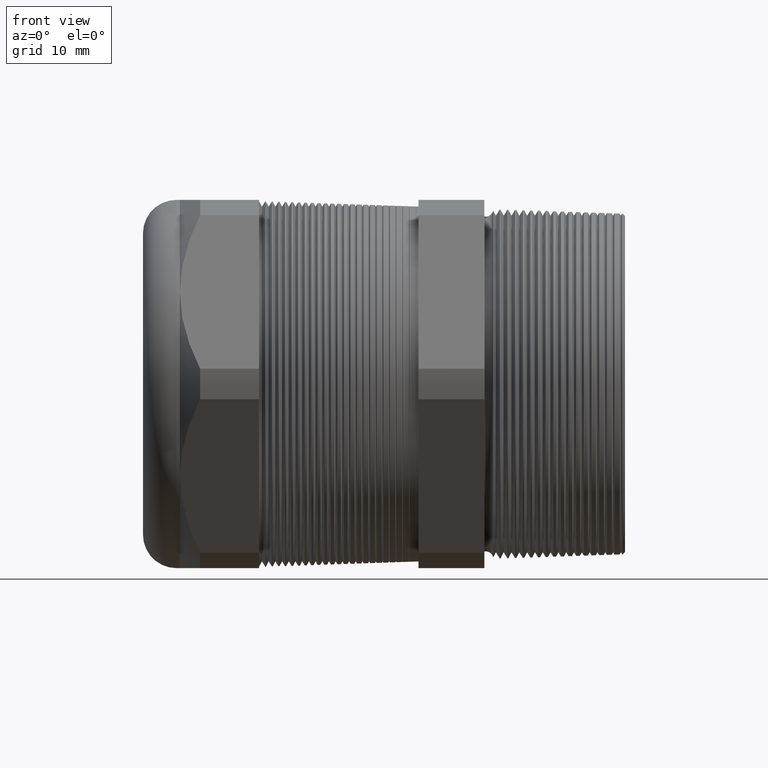
[diagram: clean part render]
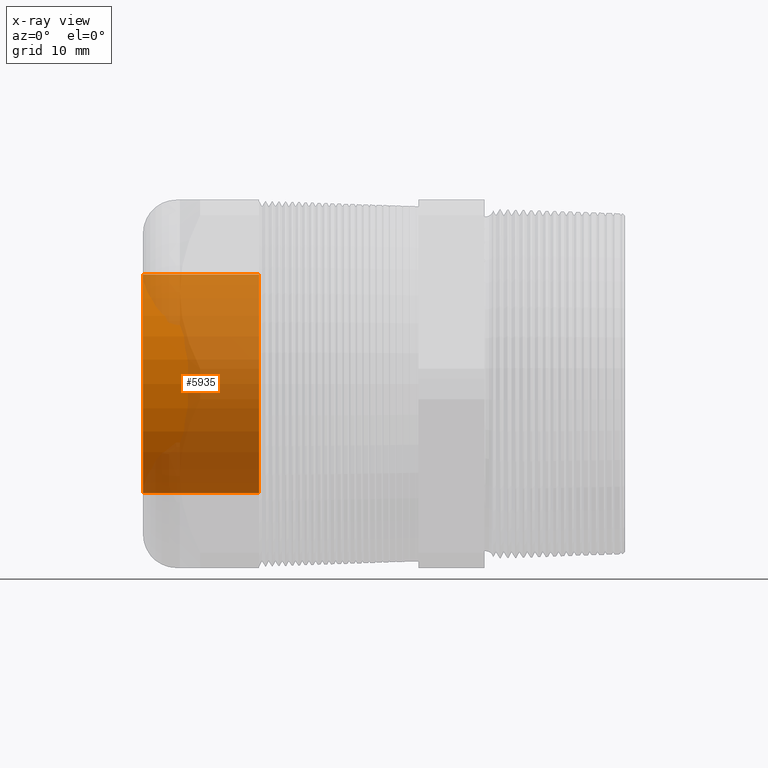
[diagram: x-ray — body ghosted, one internal face saturated and labeled with its STEP entity id]
A machine part, front view, then the same camera in x-ray: the body is ghosted and one INTERNAL B-rep face — a face not visible from any outside direction — is saturated and labeled: STEP entity #5935.
In plain terms, the highlighted cylindrical surface (partial cylindrical patch) has radius 12.446 mm, axis along (1, 0, 0).
Its self-contained STEP definition (entity closure, byte-faithful):
#1705 = CARTESIAN_POINT ( 'NONE',  ( -1.320314960629921600, 0.0000000000000000000, -0.4899999999999999900 ) ) ;
#1706 = CARTESIAN_POINT ( 'NONE',  ( -1.320314960629921600, 6.000769315822029800E-017, 0.4899999999999999900 ) ) ;
#1707 = DIRECTION ( 'NONE',  ( 0.0000000000000000000, 0.0000000000000000000, -1.000000000000000000 ) ) ;
#1708 = DIRECTION ( 'NONE',  ( 1.000000000000000000, 0.0000000000000000000, 0.0000000000000000000 ) ) ;
#1709 = CARTESIAN_POINT ( 'NONE',  ( -1.320314960629921600, 0.0000000000000000000, 0.0000000000000000000 ) ) ;
#1710 = AXIS2_PLACEMENT_3D ( 'NONE', #1709, #1708, #1707 ) ;
#1711 = CIRCLE ( 'NONE', #1710, 0.4899999999999999900 ) ;
#1820 = DIRECTION ( 'NONE',  ( 1.000000000000000000, 0.0000000000000000000, 0.0000000000000000000 ) ) ;
#1821 = VECTOR ( 'NONE', #1820, 39.37007874015748100 ) ;
#1822 = CARTESIAN_POINT ( 'NONE',  ( 0.0000000000000000000, 0.0000000000000000000, -0.4899999999999999900 ) ) ;
#1823 = LINE ( 'NONE', #1822, #1821 ) ;
#1824 = DIRECTION ( 'NONE',  ( 1.000000000000000000, 0.0000000000000000000, 0.0000000000000000000 ) ) ;
#1825 = VECTOR ( 'NONE', #1824, 39.37007874015748100 ) ;
#1826 = CARTESIAN_POINT ( 'NONE',  ( 0.0000000000000000000, 6.000769315822029800E-017, 0.4899999999999999900 ) ) ;
#1827 = LINE ( 'NONE', #1826, #1825 ) ;
#1828 = CARTESIAN_POINT ( 'NONE',  ( -1.840000000000000100, 0.0000000000000000000, -0.4899999999999999900 ) ) ;
#1829 = CARTESIAN_POINT ( 'NONE',  ( -1.840000000000000100, 6.000769315822029800E-017, 0.4899999999999999900 ) ) ;
#1830 = DIRECTION ( 'NONE',  ( 0.0000000000000000000, 0.0000000000000000000, -1.000000000000000000 ) ) ;
#1831 = DIRECTION ( 'NONE',  ( 1.000000000000000000, 0.0000000000000000000, 0.0000000000000000000 ) ) ;
#1832 = AXIS2_PLACEMENT_3D ( 'NONE', #1838, #1831, #1830 ) ;
#1833 = CIRCLE ( 'NONE', #1832, 0.4899999999999999900 ) ;
#1834 = DIRECTION ( 'NONE',  ( 0.0000000000000000000, 0.0000000000000000000, -1.000000000000000000 ) ) ;
#1835 = DIRECTION ( 'NONE',  ( 1.000000000000000000, 0.0000000000000000000, 0.0000000000000000000 ) ) ;
#1836 = CARTESIAN_POINT ( 'NONE',  ( 0.0000000000000000000, 0.0000000000000000000, 0.0000000000000000000 ) ) ;
#1837 = AXIS2_PLACEMENT_3D ( 'NONE', #1836, #1835, #1834 ) ;
#1838 = CARTESIAN_POINT ( 'NONE',  ( -1.840000000000000100, 0.0000000000000000000, 0.0000000000000000000 ) ) ;
#1839 = CYLINDRICAL_SURFACE ( 'NONE', #1837, 0.4899999999999999900 ) ;
#1840 = FACE_OUTER_BOUND ( 'NONE', #5936, .T. ) ;
#5868 = EDGE_CURVE ( 'NONE', #5869, #5870, #1711, .T. ) ;
#5869 = VERTEX_POINT ( 'NONE', #1706 ) ;
#5870 = VERTEX_POINT ( 'NONE', #1705 ) ;
#5935 = ADVANCED_FACE ( 'NONE', ( #1840 ), #1839, .F. ) ;
#5936 = EDGE_LOOP ( 'NONE', ( #5937, #5941, #5943, #5944 ) ) ;
#5937 = ORIENTED_EDGE ( 'NONE', *, *, #5938, .F. ) ;
#5938 = EDGE_CURVE ( 'NONE', #5939, #5940, #1833, .T. ) ;
#5939 = VERTEX_POINT ( 'NONE', #1829 ) ;
#5940 = VERTEX_POINT ( 'NONE', #1828 ) ;
#5941 = ORIENTED_EDGE ( 'NONE', *, *, #5942, .T. ) ;
#5942 = EDGE_CURVE ( 'NONE', #5939, #5869, #1827, .T. ) ;
#5943 = ORIENTED_EDGE ( 'NONE', *, *, #5868, .T. ) ;
#5944 = ORIENTED_EDGE ( 'NONE', *, *, #5945, .F. ) ;
#5945 = EDGE_CURVE ( 'NONE', #5940, #5870, #1823, .T. ) ;